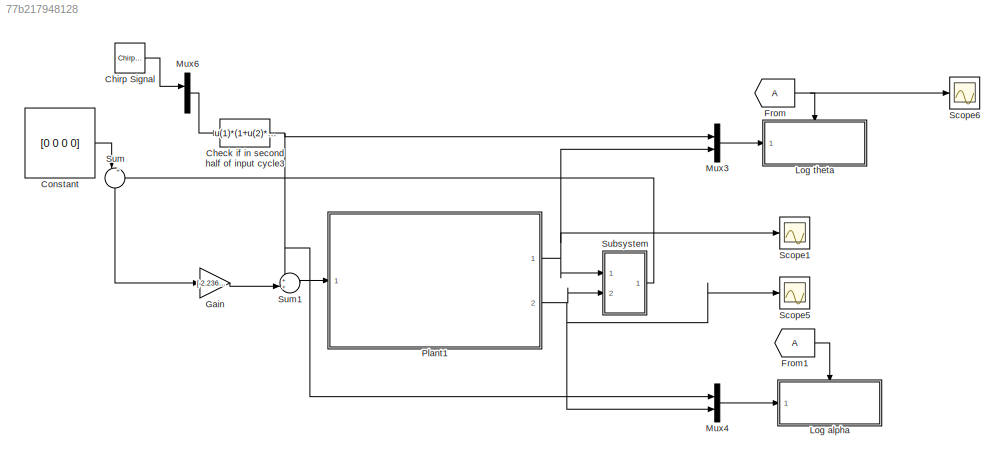
MODEL slx_77b217948128
KIND model
CONFIG AbsTol = auto
CONFIG EnableMultiTasking = on
CONFIG FixedStep = 0.002
CONFIG MaxStep = auto
CONFIG MinStep = auto
CONFIG PreLoadFcn = w0 = 4\nwf = 40\nN = 10\nTf = 300
CONFIG RelTol = 1e-3
CONFIG SampleTimeConstraint = Unconstrained
CONFIG Solver = ode1
CONFIG SolverName = ode1
CONFIG StartFcn = w0 = 4\nwf = 40\nN = 10\nTf = 300
CONFIG StartTime = 0.0
CONFIG StopTime = inf
BLOCK [Fcn] Check if in second half of input cycle3
  Expr = u(1)*(1+u(2)*2/Tf)
BLOCK [Reference] Chirp Signal  REF=simulink/Sources/Chirp Signal
  Ports = [0, 1]
  SourceBlock = simulink/Sources/Chirp Signal
  SourceProductBaseCode = SL
  SourceProductName = Simulink
  SourceType = chirp
BLOCK [Constant] Constant
  Value = [0 0 0 0]
BLOCK [From] From
BLOCK [From] From1
BLOCK [Gain] Gain
  Gain = [-2.2361 37.6175 -1.5007 3.3789]
  Multiplication = Matrix(K*u)
  OutDataTypeStr = Inherit: Inherit via internal rule
  ParamDataTypeStr = Inherit: Inherit via internal rule
  SaturateOnIntegerOverflow = off
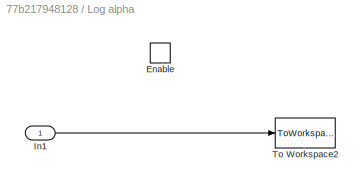
BLOCK [SubSystem] Log alpha
  Ports = [1, 0, 1]
  RequestExecContextInheritance = off
  TreatAsAtomicUnit = on
BLOCK [EnablePort] Log alpha/Enable
  Ports = []
BLOCK [Inport] Log alpha/In1
  IconDisplay = Port number
BLOCK [ToWorkspace] Log alpha/To Workspace2
  FixptAsFi = on
  MaxDataPoints = inf
  Ports = [1]
  SampleTime = -1
  Save2DSignal = 3-D array (concatenate along third dimension)
  VariableName = alpha_trunc
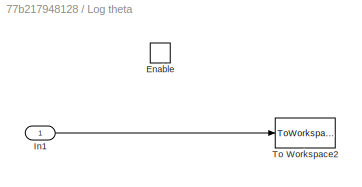
BLOCK [SubSystem] Log theta
  Ports = [1, 0, 1]
  RequestExecContextInheritance = off
  TreatAsAtomicUnit = on
BLOCK [EnablePort] Log theta/Enable
  Ports = []
BLOCK [Inport] Log theta/In1
  IconDisplay = Port number
BLOCK [ToWorkspace] Log theta/To Workspace2
  FixptAsFi = on
  MaxDataPoints = inf
  Ports = [1]
  SampleTime = -1
  Save2DSignal = 3-D array (concatenate along third dimension)
  VariableName = theta_trunc
BLOCK [Mux] Mux3
  DisplayOption = bar
  Inputs = 2
  Ports = [2, 1]
BLOCK [Mux] Mux4
  DisplayOption = bar
  Inputs = 2
  Ports = [2, 1]
BLOCK [Mux] Mux6
  DisplayOption = bar
  Inputs = 2
  Ports = [2, 1]
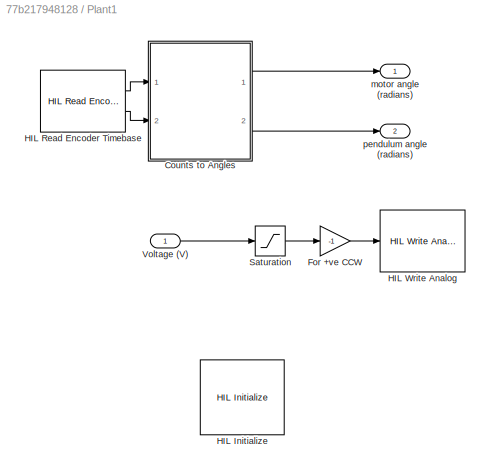
BLOCK [SubSystem] Plant1
  Ports = [1, 2]
  RequestExecContextInheritance = off
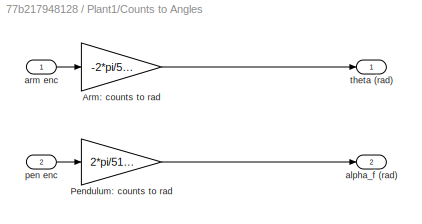
BLOCK [SubSystem] Plant1/Counts to Angles
  Ports = [2, 2]
  RequestExecContextInheritance = off
BLOCK [Gain] Plant1/Counts to Angles/Arm: counts to rad
  Gain = -2*pi/512/4
  OutDataTypeStr = Inherit: Inherit via internal rule
  ParamDataTypeStr = Inherit: Inherit via internal rule
  SaturateOnIntegerOverflow = off
BLOCK [Gain] Plant1/Counts to Angles/Pendulum: counts to rad
  Gain = 2*pi/512/4
  OutDataTypeStr = Inherit: Inherit via internal rule
  ParamDataTypeStr = Inherit: Inherit via internal rule
  SaturateOnIntegerOverflow = off
BLOCK [Outport] Plant1/Counts to Angles/alpha_f (rad)
  IconDisplay = Port number
  Port = 2
BLOCK [Inport] Plant1/Counts to Angles/arm enc
  IconDisplay = Port number
BLOCK [Inport] Plant1/Counts to Angles/pen enc
  IconDisplay = Port number
  Port = 2
BLOCK [Outport] Plant1/Counts to Angles/theta (rad)
  IconDisplay = Port number
BLOCK [Gain] Plant1/For +ve CCW
  Gain = -1
  OutDataTypeStr = Inherit: Inherit via internal rule
  ParamDataTypeStr = Inherit: Inherit via internal rule
  SaturateOnIntegerOverflow = off
BLOCK [Reference] Plant1/HIL Initialize  REF=quarc_library/Data Acquisition/Generic/Configuration/HIL Initialize
  AttributesFormatString = %<object_name> (%<board_type>-%<board_number>)
  Ports = []
  SourceBlock = quarc_library/Data Acquisition/Generic/Configuration/HIL Initialize
  SourceProductName = QUARC Targets
  SourceType = HIL Initialize
  UserDataPersistent = on
BLOCK [Reference] Plant1/HIL Read Encoder Timebase  REF=quarc_library/Data Acquisition/Generic/Timebases/HIL Read Encoder
Timebase
  AttributesFormatString = (%<object_name>)
  Ports = [0, 2]
  SourceBlock = quarc_library/Data Acquisition/Generic/Timebases/HIL Read Encoder\nTimebase
  SourceProductName = QUARC Targets
  SourceType = HIL Read Encoder Timebase
  UserDataPersistent = on
BLOCK [Reference] Plant1/HIL Write Analog  REF=quarc_library/Data Acquisition/Generic/Immediate I//O/HIL Write Analog
  AttributesFormatString = (%<object_name>)
  Ports = [1]
  SourceBlock = quarc_library/Data Acquisition/Generic/Immediate I//O/HIL Write Analog
  SourceProductName = QUARC Targets
  SourceType = HIL Write Analog
  UserDataPersistent = on
BLOCK [Saturate] Plant1/Saturation
  InputPortMap = u0
  LowerLimit = -10
  Ports = [1, 1]
  UpperLimit = 10
BLOCK [Inport] Plant1/Voltage (V)
  IconDisplay = Port number
BLOCK [Outport] Plant1/motor angle (radians)
  IconDisplay = Port number
BLOCK [Outport] Plant1/pendulum angle (radians)
  IconDisplay = Port number
  Port = 2
BLOCK [Scope] Scope1
  Floating = off
  NumInputPorts = 1
  Ports = [1]
  ScopeSpecificationString = Simulink.scopes.TimeScopeBlockCfg('CurrentConfiguration', extmgr.ConfigurationSet(extmgr.Configuration('Core','General UI',true),extmgr.Configuration('Core','Source UI',true),extmgr.Configuration('Sources','WiredSimulink',true,'DataLoggingVariableName','ScopeData1'),extmgr.Configuration('Visuals','Time Domain',true,'SerializedDisplays',{struct('MinYLimReal','0.18906','MaxYLimReal','0.41533','YLabe...<+1439ch>
BLOCK [Scope] Scope5
  Floating = off
  NumInputPorts = 1
  Ports = [1]
  ScopeSpecificationString = Simulink.scopes.TimeScopeBlockCfg('CurrentConfiguration', extmgr.ConfigurationSet(extmgr.Configuration('Core','General UI',true),extmgr.Configuration('Core','Source UI',true),extmgr.Configuration('Sources','WiredSimulink',true,'DataLoggingVariableName','ScopeData2'),extmgr.Configuration('Visuals','Time Domain',true,'SerializedDisplays',{struct('MinYLimReal','-0.85395','MaxYLimReal','0.88144','YLab...<+1472ch>
BLOCK [Scope] Scope6
  Floating = off
  NumInputPorts = 1
  Ports = [1]
  ScopeSpecificationString = Simulink.scopes.TimeScopeBlockCfg('CurrentConfiguration', extmgr.ConfigurationSet(extmgr.Configuration('Core','General UI',true),extmgr.Configuration('Core','Source UI',true),extmgr.Configuration('Sources','WiredSimulink',true,'DataLoggingVariableName','ScopeData3'),extmgr.Configuration('Visuals','Time Domain',true,'SerializedDisplays',{struct('MinYLimReal','-0.125','MaxYLimReal','1.125','YLabelRe...<+1433ch>
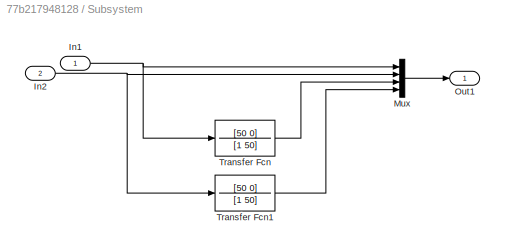
BLOCK [SubSystem] Subsystem
  Ports = [2, 1]
  RequestExecContextInheritance = off
BLOCK [Inport] Subsystem/In1
  IconDisplay = Port number
BLOCK [Inport] Subsystem/In2
  IconDisplay = Port number
  Port = 2
BLOCK [Mux] Subsystem/Mux
  DisplayOption = bar
  Ports = [4, 1]
BLOCK [Outport] Subsystem/Out1
  IconDisplay = Port number
BLOCK [TransferFcn] Subsystem/Transfer Fcn
  Denominator = [1 50]
  Numerator = [50 0]
BLOCK [TransferFcn] Subsystem/Transfer Fcn1
  Denominator = [1 50]
  Numerator = [50 0]
BLOCK [Sum] Sum
  IconShape = round
  InputSameDT = off
  Inputs = |+-
  OutDataTypeStr = Inherit: Inherit via internal rule
  Ports = [2, 1]
  SaturateOnIntegerOverflow = off
BLOCK [Sum] Sum1
  IconShape = round
  InputSameDT = off
  Inputs = ++|
  OutDataTypeStr = Inherit: Inherit via internal rule
  Ports = [2, 1]
  SaturateOnIntegerOverflow = off
NET Check if in second half of input cycle3:1 -> Mux3:1, Mux4:1, Sum1:1
LINE Chirp Signal:1 -> Mux6:1
LINE Constant:1 -> Sum:1
LINE From1:1 -> Log alpha:enable
NET From:1 -> Log theta:enable, Scope6:1
LINE Gain:1 -> Sum1:2
LINE Log alpha/In1:1 -> Log alpha/To Workspace2:1
LINE Log theta/In1:1 -> Log theta/To Workspace2:1
LINE Mux3:1 -> Log theta:1
LINE Mux4:1 -> Log alpha:1
LINE Mux6:1 -> Check if in second half of input cycle3:1
LINE Plant1/Counts to Angles/Arm: counts to rad:1 -> Plant1/Counts to Angles/theta (rad):1
LINE Plant1/Counts to Angles/Pendulum: counts to rad:1 -> Plant1/Counts to Angles/alpha_f (rad):1
LINE Plant1/Counts to Angles/arm enc:1 -> Plant1/Counts to Angles/Arm: counts to rad:1
LINE Plant1/Counts to Angles/pen enc:1 -> Plant1/Counts to Angles/Pendulum: counts to rad:1
LINE Plant1/Counts to Angles:1 -> Plant1/motor angle (radians):1
LINE Plant1/Counts to Angles:2 -> Plant1/pendulum angle (radians):1
LINE Plant1/For +ve CCW:1 -> Plant1/HIL Write Analog:1
LINE Plant1/HIL Read Encoder Timebase:1 -> Plant1/Counts to Angles:1
LINE Plant1/HIL Read Encoder Timebase:2 -> Plant1/Counts to Angles:2
LINE Plant1/Saturation:1 -> Plant1/For +ve CCW:1
LINE Plant1/Voltage (V):1 -> Plant1/Saturation:1
NET Plant1:1 -> Mux3:2, Scope1:1, Subsystem:1
NET Plant1:2 -> Mux4:2, Scope5:1, Subsystem:2
NET Subsystem/In1:1 -> Subsystem/Mux:1, Subsystem/Transfer Fcn:1
NET Subsystem/In2:1 -> Subsystem/Mux:2, Subsystem/Transfer Fcn1:1
LINE Subsystem/Mux:1 -> Subsystem/Out1:1
LINE Subsystem/Transfer Fcn1:1 -> Subsystem/Mux:4
LINE Subsystem/Transfer Fcn:1 -> Subsystem/Mux:3
LINE Subsystem:1 -> Sum:2
LINE Sum1:1 -> Plant1:1
LINE Sum:1 -> Gain:1
note: NET lines group one-source signal fan-out (src -> all destinations, sorted); 1:1 wires keep LINE
